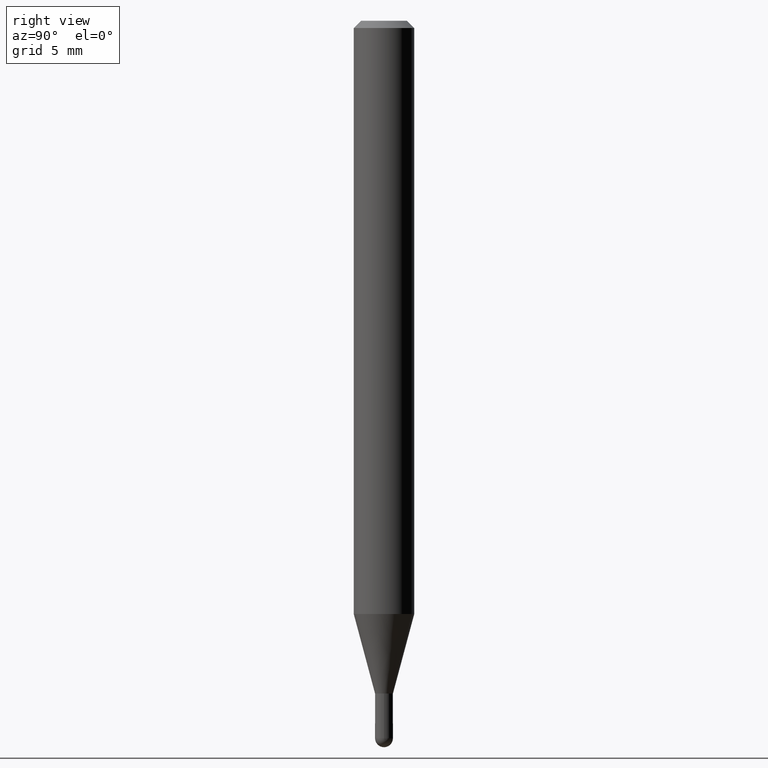
[diagram: clean part render]
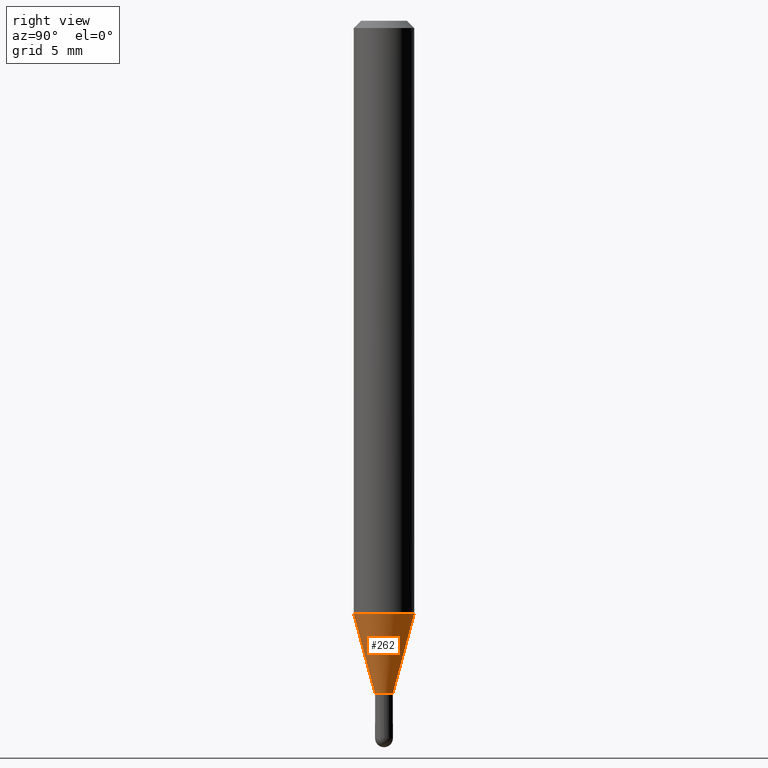
[diagram: same view with one face highlighted and labeled with its STEP entity id]
A machine part, right view. The second image highlights one B-rep face of the part: STEP entity #262.
In plain terms, the highlighted conical surface has half-angle 15 deg.
Its self-contained STEP definition (entity closure, byte-faithful):
#1 = DIRECTION ( 'NONE',  ( -6.982962677686265922E-15, -1.000000000000000000, 0.000000000000000000 ) ) ;
#2 = LINE ( 'NONE', #398, #367 ) ;
#7 = CARTESIAN_POINT ( 'NONE',  ( -4.364351673553618406E-16, -0.06250000000000428824, -1.224789764466974296 ) ) ;
#12 = EDGE_CURVE ( 'NONE', #290, #351, #2, .T. ) ;
#13 = CARTESIAN_POINT ( 'NONE',  ( 3.396760682503241373E-29, -4.849661120056686555E-15, -1.389000000000000234 ) ) ;
#71 = CARTESIAN_POINT ( 'NONE',  ( 3.396760682503241373E-29, -4.849661120056686555E-15, -1.389000000000000234 ) ) ;
#89 = AXIS2_PLACEMENT_3D ( 'NONE', #71, #269, #118 ) ;
#91 = CARTESIAN_POINT ( 'NONE',  ( -1.291848095371614353E-16, -0.01850000000000477304, -1.389000000000000234 ) ) ;
#95 = DIRECTION ( 'NONE',  ( -1.807323732225379838E-15, -0.2588190451025252914, 0.9659258262890670910 ) ) ;
#99 = EDGE_LOOP ( 'NONE', ( #417, #229, #187, #225 ) ) ;
#103 = CIRCLE ( 'NONE', #395, 0.06250000000000000000 ) ;
#118 = DIRECTION ( 'NONE',  ( -6.982962677686265922E-15, -1.000000000000000000, 0.000000000000000000 ) ) ;
#121 = CARTESIAN_POINT ( 'NONE',  ( 4.440892098500922971E-16, 0.06249999999999570482, -1.224789764466974962 ) ) ;
#129 = DIRECTION ( 'NONE',  ( -2.445472053638043115E-29, 3.491476688305749916E-15, 1.000000000000000000 ) ) ;
#130 = CARTESIAN_POINT ( 'NONE',  ( 2.995189140585907376E-29, -4.276324910711931920E-15, -1.224789764466974740 ) ) ;
#149 = EDGE_CURVE ( 'NONE', #180, #437, #316, .T. ) ;
#160 = DIRECTION ( 'NONE',  ( 1.839019923739650408E-15, 0.2588190451025320082, 0.9659258262890650926 ) ) ;
#180 = VERTEX_POINT ( 'NONE', #91 ) ;
#187 = ORIENTED_EDGE ( 'NONE', *, *, #391, .F. ) ;
#197 = FACE_OUTER_BOUND ( 'NONE', #99, .T. ) ;
#225 = ORIENTED_EDGE ( 'NONE', *, *, #149, .F. ) ;
#229 = ORIENTED_EDGE ( 'NONE', *, *, #12, .T. ) ;
#262 = ADVANCED_FACE ( 'NONE', ( #197 ), #323, .T. ) ;
#266 = CIRCLE ( 'NONE', #339, 0.01849999999999992623 ) ;
#269 = DIRECTION ( 'NONE',  ( -2.445472053638043115E-29, 3.491476688305749916E-15, 1.000000000000000000 ) ) ;
#290 = VERTEX_POINT ( 'NONE', #430 ) ;
#316 = LINE ( 'NONE', #442, #413 ) ;
#323 = CONICAL_SURFACE ( 'NONE', #89, 0.01849999999999992623, 0.2617993877991576235 ) ;
#328 = DIRECTION ( 'NONE',  ( -6.982962677686265922E-15, -1.000000000000000000, 4.370956789862821150E-15 ) ) ;
#332 = DIRECTION ( 'NONE',  ( -2.445472053638043115E-29, 3.491476688305749916E-15, 1.000000000000000000 ) ) ;
#339 = AXIS2_PLACEMENT_3D ( 'NONE', #13, #332, #1 ) ;
#351 = VERTEX_POINT ( 'NONE', #121 ) ;
#367 = VECTOR ( 'NONE', #160, 39.37007874015748854 ) ;
#391 = EDGE_CURVE ( 'NONE', #437, #351, #103, .T. ) ;
#395 = AXIS2_PLACEMENT_3D ( 'NONE', #130, #129, #328 ) ;
#398 = CARTESIAN_POINT ( 'NONE',  ( 1.314504061156519559E-16, 0.01849999999999507594, -1.389000000000000234 ) ) ;
#413 = VECTOR ( 'NONE', #95, 39.37007874015748143 ) ;
#417 = ORIENTED_EDGE ( 'NONE', *, *, #468, .T. ) ;
#430 = CARTESIAN_POINT ( 'NONE',  ( 2.877698079828723853E-16, 0.01849999999999507594, -1.389000000000000234 ) ) ;
#437 = VERTEX_POINT ( 'NONE', #7 ) ;
#442 = CARTESIAN_POINT ( 'NONE',  ( -1.291848095371614353E-16, -0.01850000000000477304, -1.389000000000000234 ) ) ;
#468 = EDGE_CURVE ( 'NONE', #180, #290, #266, .T. ) ;